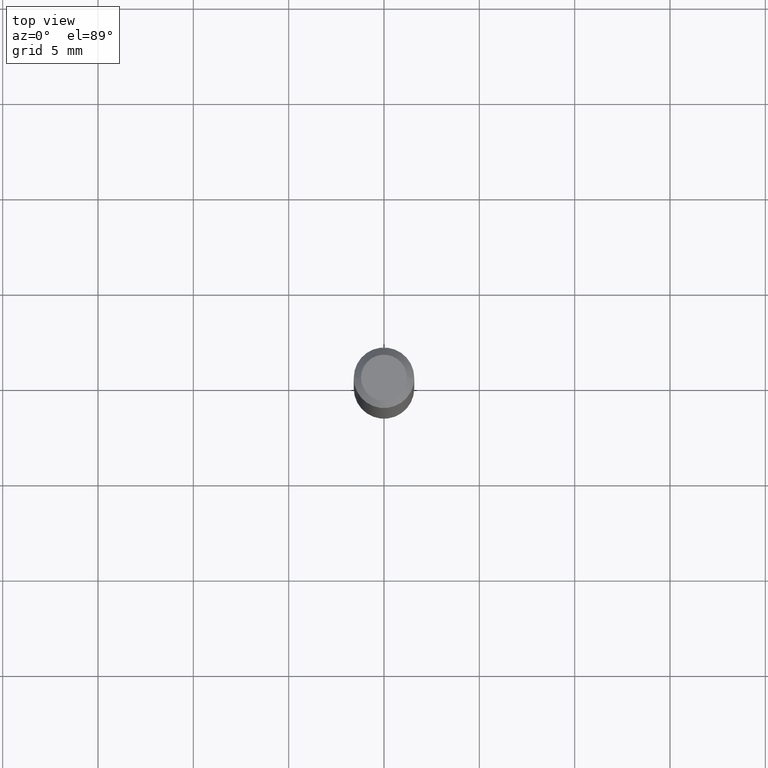
[diagram: clean part render]
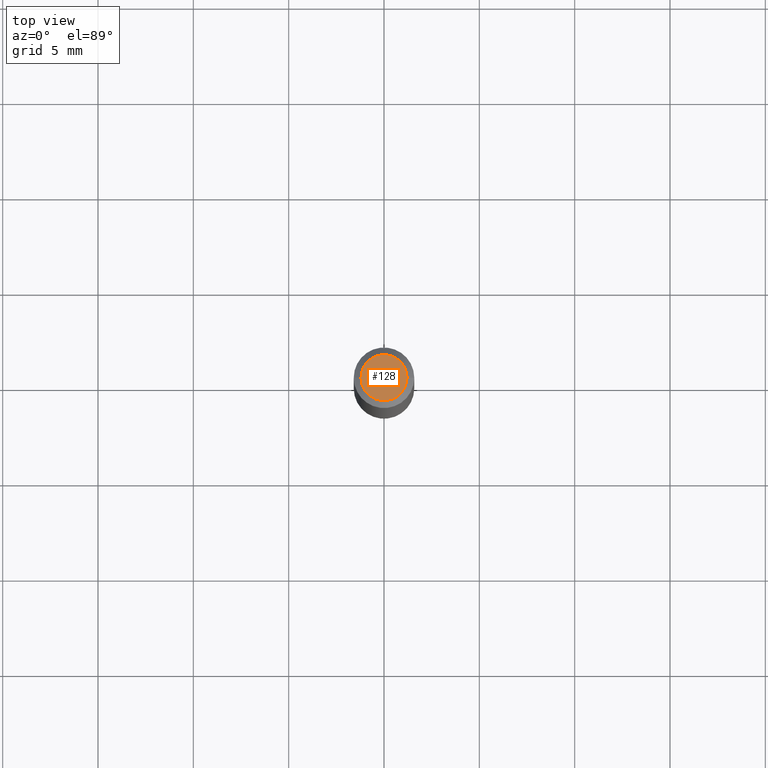
[diagram: same view with one face highlighted and labeled with its STEP entity id]
A machine part, top view. The second image highlights one B-rep face of the part: STEP entity #128.
In plain terms, the highlighted planar face has unit normal (0, -0, -1).
Its self-contained STEP definition (entity closure, byte-faithful):
#4 = EDGE_CURVE ( 'NONE', #60, #228, #39, .T. ) ;
#6 = AXIS2_PLACEMENT_3D ( 'NONE', #153, #427, #136 ) ;
#19 = CARTESIAN_POINT ( 'NONE',  ( -0.04749999999999999362, 3.578768372314212971E-16, 1.370093274943958627E-16 ) ) ;
#39 = CIRCLE ( 'NONE', #6, 0.04749999999999999362 ) ;
#54 = DIRECTION ( 'NONE',  ( 1.000000000000000000, -6.982962677686267499E-15, 4.852736867747366768E-29 ) ) ;
#58 = CARTESIAN_POINT ( 'NONE',  ( 3.316907271900976096E-16, 0.04749999999999999362, -9.734069984785028182E-17 ) ) ;
#60 = VERTEX_POINT ( 'NONE', #19 ) ;
#128 = ADVANCED_FACE ( 'NONE', ( #445 ), #231, .F. ) ;
#136 = DIRECTION ( 'NONE',  ( 1.000000000000000000, -6.982962677686267499E-15, 4.852736867747366768E-29 ) ) ;
#153 = CARTESIAN_POINT ( 'NONE',  ( -3.350520365439544480E-45, 4.783655101941405986E-31, 1.370093274943982539E-16 ) ) ;
#186 = EDGE_CURVE ( 'NONE', #228, #60, #452, .T. ) ;
#190 = ORIENTED_EDGE ( 'NONE', *, *, #186, .T. ) ;
#199 = DIRECTION ( 'NONE',  ( 2.438088387897960049E-29, -3.491481338843145188E-15, -1.000000000000000000 ) ) ;
#228 = VERTEX_POINT ( 'NONE', #292 ) ;
#231 = PLANE ( 'NONE',  #258 ) ;
#258 = AXIS2_PLACEMENT_3D ( 'NONE', #58, #199, #270 ) ;
#266 = AXIS2_PLACEMENT_3D ( 'NONE', #342, #335, #54 ) ;
#270 = DIRECTION ( 'NONE',  ( -1.000000000000000000, 6.982962677686265922E-15, -4.876176775795935793E-29 ) ) ;
#292 = CARTESIAN_POINT ( 'NONE',  ( 0.04749999999999999362, -4.035134999187576158E-16, 1.370093274944008177E-16 ) ) ;
#324 = EDGE_LOOP ( 'NONE', ( #336, #190 ) ) ;
#335 = DIRECTION ( 'NONE',  ( -2.445468806185136597E-29, 3.491481338843145583E-15, 1.000000000000000000 ) ) ;
#336 = ORIENTED_EDGE ( 'NONE', *, *, #4, .T. ) ;
#342 = CARTESIAN_POINT ( 'NONE',  ( -3.350520365439544480E-45, 4.783655101941405986E-31, 1.370093274943982539E-16 ) ) ;
#427 = DIRECTION ( 'NONE',  ( -2.445468806185136597E-29, 3.491481338843145583E-15, 1.000000000000000000 ) ) ;
#445 = FACE_OUTER_BOUND ( 'NONE', #324, .T. ) ;
#452 = CIRCLE ( 'NONE', #266, 0.04749999999999999362 ) ;